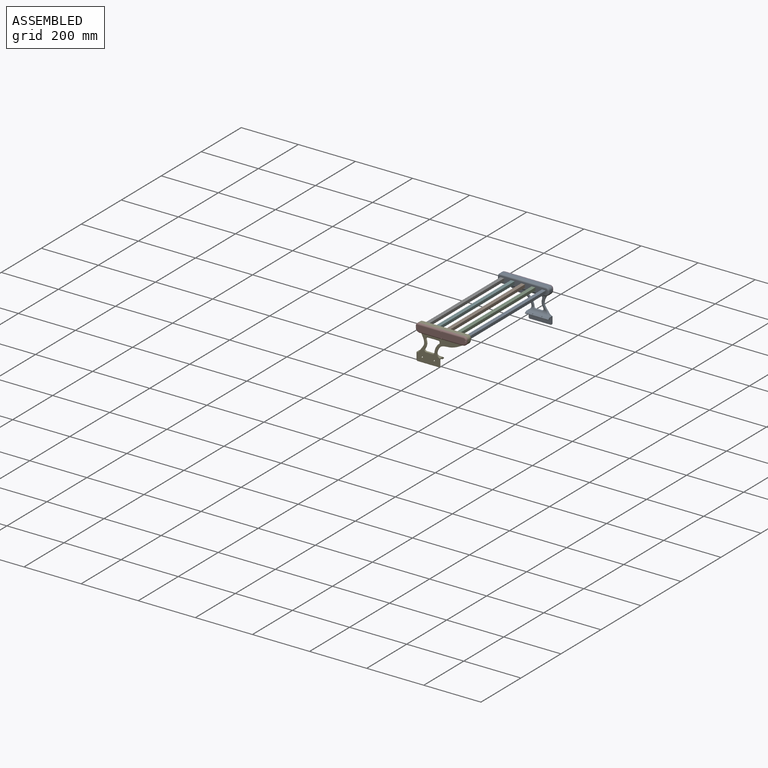
[diagram: assembled view]
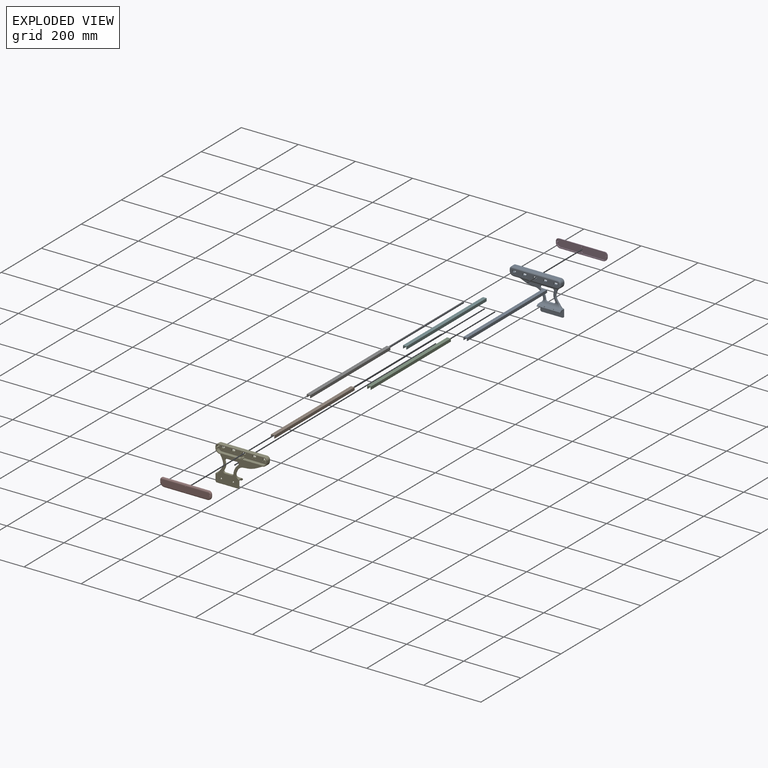
[diagram: exploded view]
GUIDED TOUR — MATED ASSEMBLY (Onshape document 815b8895f1c59bb0c7b80eb2, AutoMate assembly 815b8895f1c59bb0c7b80eb2_e57cbc2ef14b049c7cd40564_e2244f5d2199d30708cefea8_default)

This assembly has 9 components, labeled P0..P8 below (a component is one placed occurrence of a part; the same part can appear more than once), held together by 8 mates. A mate is a constraint between two components; its type names the relative motion it leaves free:
  FASTENED — locks the two components together rigidly (no relative motion).
Axis/direction vectors are unit vectors and 'through' points are millimeter coordinates, both in the assembly's world frame.

MATES
  1. FASTENED "Fastened 3": P1 <-> P0, direction (0.000, 1.000, 0.000) through (-175.53, -9.39, -10.94) mm
  2. FASTENED "Fastened 1": P8 <-> P0, direction (0.000, 1.000, 0.000) through (-102.73, -9.39, -10.94) mm
  3. FASTENED "Fastened 5": P6 <-> P0, direction (0.000, 1.000, 0.000) through (-248.34, -9.39, -10.94) mm
  4. FASTENED "Fastened 8": P7 <-> P4, direction (0.000, 1.000, 0.000) through (-181.24, -421.39, 4.76) mm
  5. FASTENED "Fastened 2": P2 <-> P0, direction (0.000, 1.000, 0.000) through (-139.13, -9.39, -10.94) mm
  6. FASTENED "Fastened 6": P4 <-> P6, direction (0.000, -1.000, 0.000) through (-259.84, -409.39, -10.94) mm
  7. FASTENED "Fastened 7": P3 <-> P0, direction (0.000, -1.000, 0.000) through (-181.32, 2.61, 4.76) mm
  8. FASTENED "Fastened 4": P5 <-> P0, direction (0.000, 1.000, 0.000) through (-211.94, -9.39, -10.94) mm

ASSEMBLY ORDER
  1. P8 — the base component [order verified]
  2. P2 [order verified]
  3. P1 [order verified]
  4. P5 [order verified]
  5. P6 [order verified]
  6. P0 [order verified]
  7. P4 [order verified]
  8. P3 [order verified]
  9. P7 [order verified]
(P0, P4 verified with a relaxed clearance tolerance: the source model stores slight part interference there.)
Order-tag legend:
  [order verified] — this step's position reverses a verified removal order: the component was checked to insert without passing through the ones already placed.

Of the 9 components, 5 carry the full construction recipe — the FeatureScript program that regenerates the part's solid from scratch; the rest are supplied as boundary geometry only.
Each toured component is shown spotlighted twice — in the assembled view, then in the exploded view, where a leader line traces a displaced component back to its assembled socket (saturated green if recipe-attached, orange if geometry-only; every other component desaturated gray) — followed by its recipe or geometry summary and the mates that hold it.
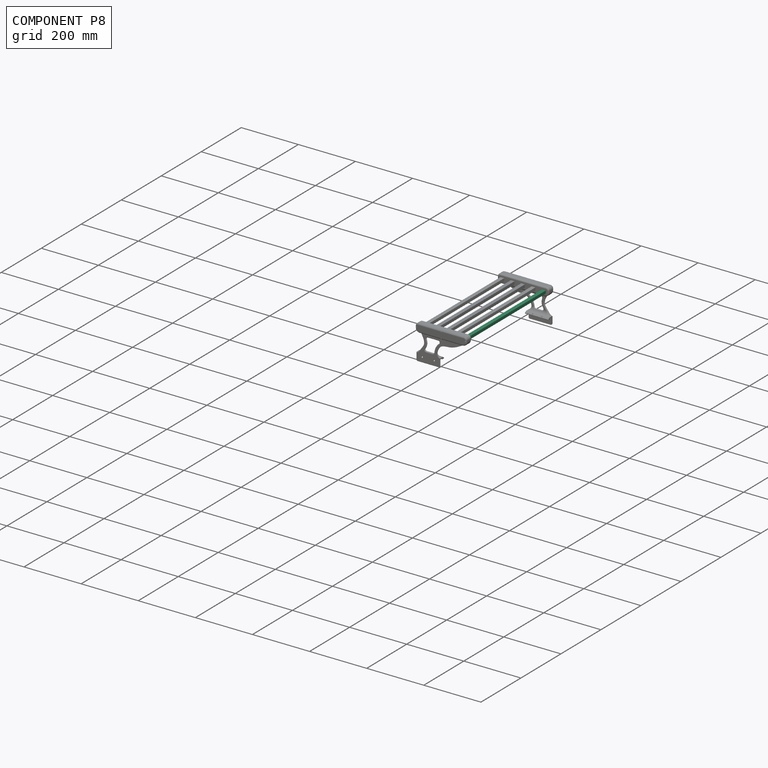
[diagram: component P8 — assembled]
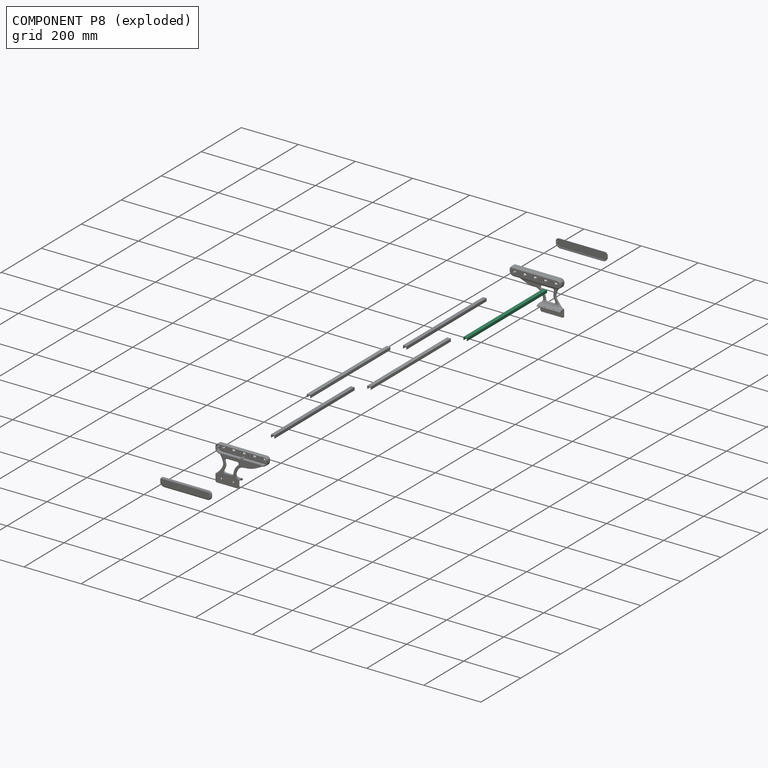
[diagram: component P8 — exploded]
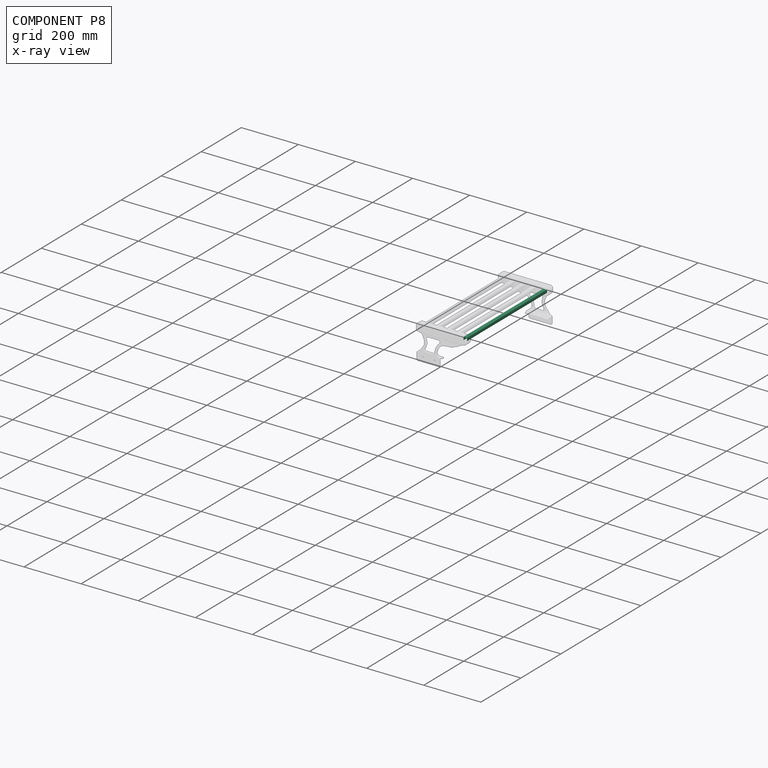
[diagram: component P8 — x-ray view]
COMPONENT P8 — same part as P1 (CADFS 00497129); its construction recipe is shown at P1.
Held by: FASTENED mate "Fastened 1" to P0.
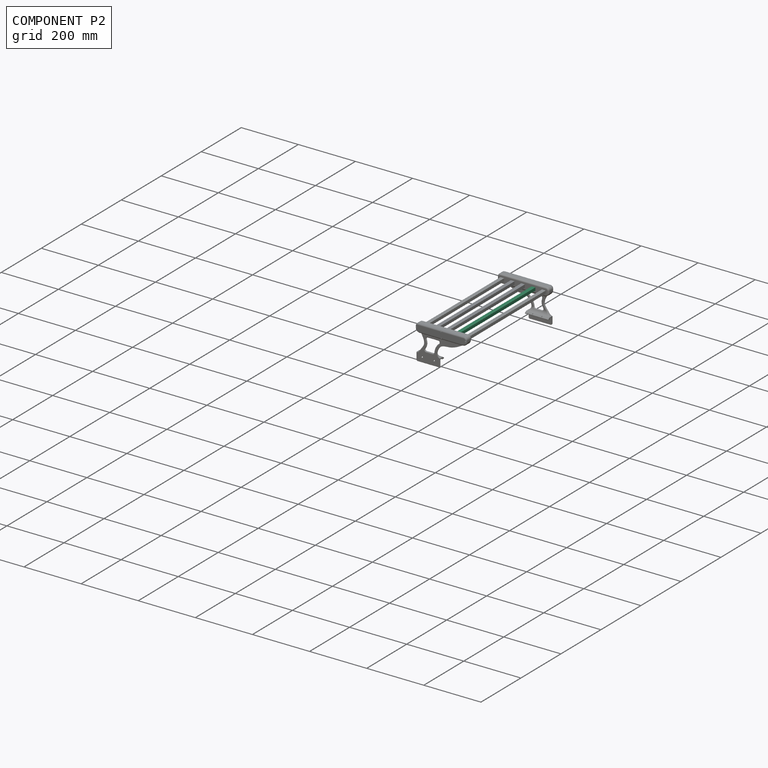
[diagram: component P2 — assembled]
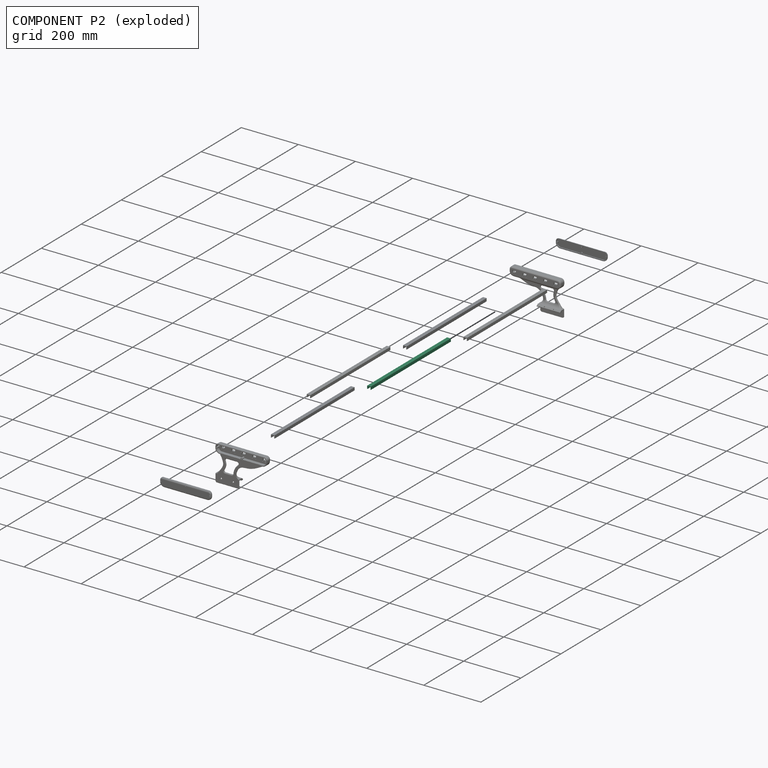
[diagram: component P2 — exploded]
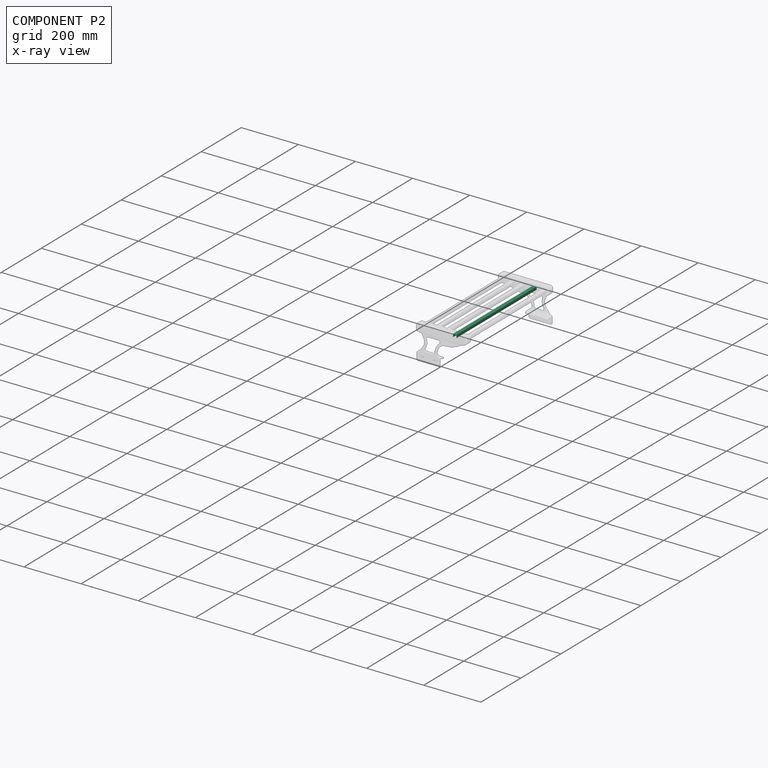
[diagram: component P2 — x-ray view]
COMPONENT P2 — same part as P1 (CADFS 00497129); its construction recipe is shown at P1.
Held by: FASTENED mate "Fastened 2" to P0.
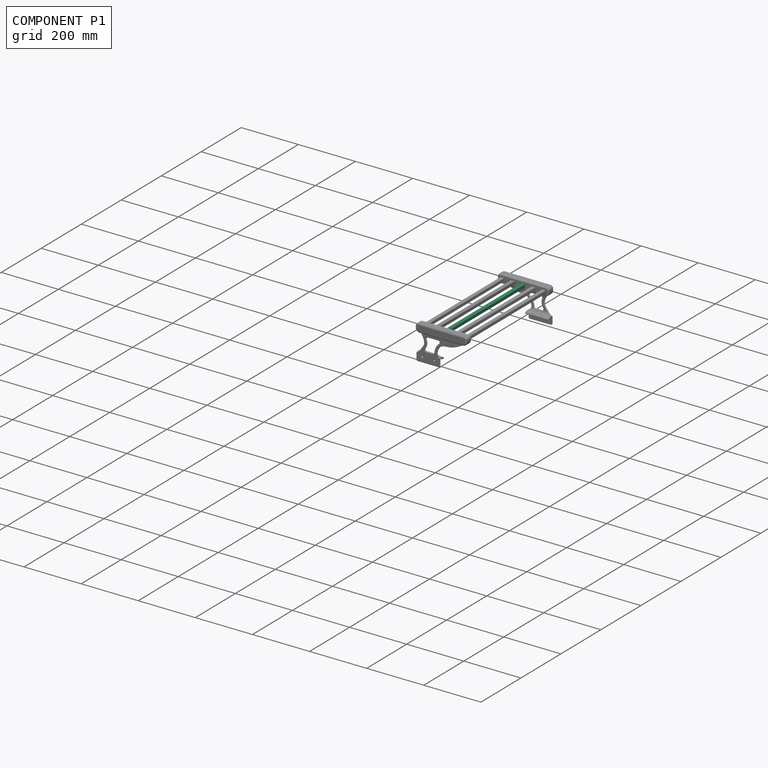
[diagram: component P1 — assembled]
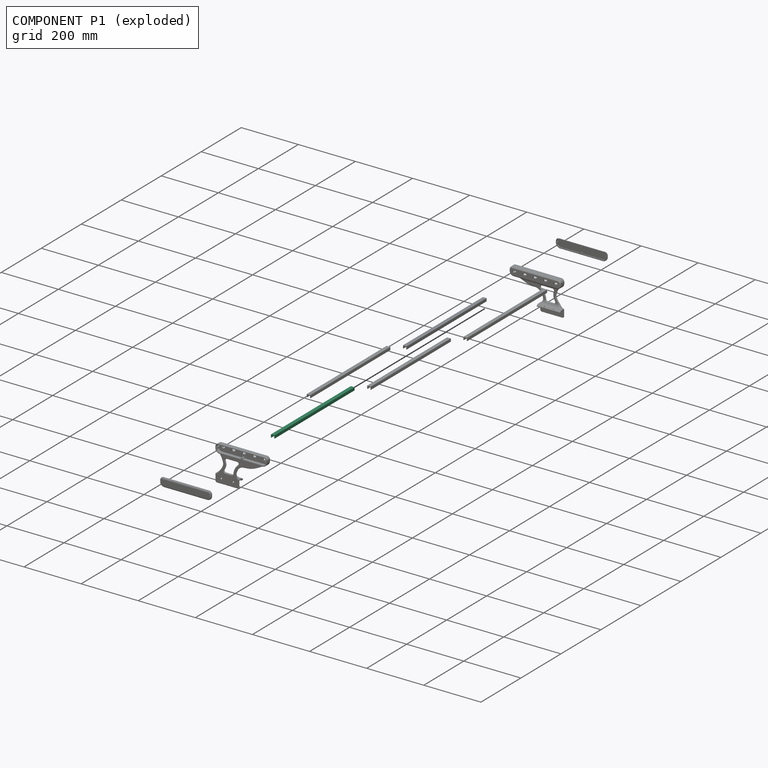
[diagram: component P1 — exploded]
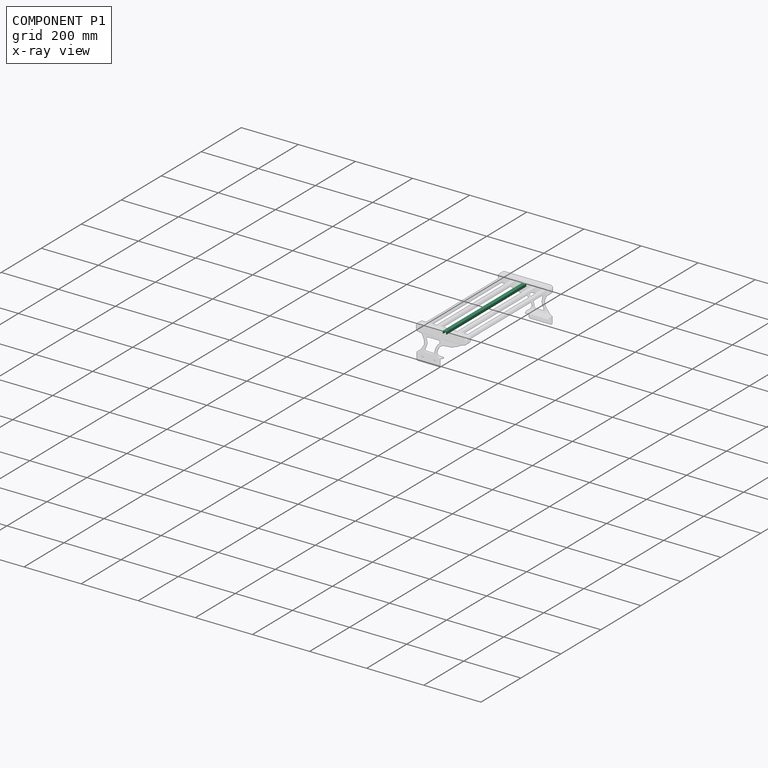
[diagram: component P1 — x-ray view]
COMPONENT P1 — recipe-attached (CADFS 00497129, mesh-verified: the recipe's output STEP matches this component's geometry to below the mesh-comparison resolution (tessellation chordal tolerance ~0.601 mm)).
Held by: FASTENED mate "Fastened 3" to P0.
Construction recipe (FeatureScript — the CAD program that rebuilds this solid; sketch coordinates are in the units given by the * unit suffixes, e.g. mm):

FeatureScript 2599;
import(path : "onshape/std/geometry.fs", version : "2599.0");
import(path : "onshape/std/common.fs", version : "2599.0");
const mm = millimeter;
const VERTEX = EntityType.VERTEX;
const EDGE = EntityType.EDGE;
const FACE = EntityType.FACE;
const BODY = EntityType.BODY;
function v(x, y){return vector(x, y);}
function OD(order){return orderDisambiguation(order);}
function OSD(set){return originalSetDisambiguation(set);}
function TD(topology){return topologyDisambiguation(topology);}
function TDD(query){return trueDependencyDisambiguation(query);}
function sQuery(a, b, c) {return sketchEntityQuery(a, b, c);}

annotation { "Feature Type Name" : "Feature", "Feature Type Description" : "" }
export const myFeature = defineFeature(function(context is Context, id is Id, definition is map)
    precondition{}
    {
        {
            var Q0;
            Q0=qCreatedBy(makeId("Front.planeOp"),FACE);
            var sketch = newSketch(context, id + "F0", { "sketchPlane" : qUnion([Q0])});
            skLineSegment(sketch, "E0.bottom", {"start": v(3.26, 0.03) * mm, "end": v(16.26, 0.03) * mm});
            skLineSegment(sketch, "E0.left", {"start": v(3.26, 0.03) * mm, "end": v(3.26, -9.97) * mm});
            skLineSegment(sketch, "E0.right", {"start": v(16.26, 0.03) * mm, "end": v(16.26, -9.97) * mm});
            skLineSegment(sketch, "E1.0", {"start": v(4.76, -1.47) * mm, "end": v(4.76, -9.97) * mm});
            skLineSegment(sketch, "E1.1", {"start": v(4.76, -1.47) * mm, "end": v(14.76, -1.47) * mm});
            skLineSegment(sketch, "E1.2", {"start": v(14.76, -1.47) * mm, "end": v(14.76, -9.97) * mm});
            skLineSegment(sketch, "E2", {"start": v(3.26, -9.97) * mm, "end": v(4.76, -9.97) * mm});
            skLineSegment(sketch, "E3", {"start": v(14.76, -9.97) * mm, "end": v(16.26, -9.97) * mm});
            skSolve(sketch);
        }
        {
            var Q0;
            Q0=makeQuery(id+"F0.imprint","IMPRINT",FACE,{"disambiguationData":[TD([[makeQuery(id+"F0.imprint","IMPRINT",EDGE,{"derivedFrom":sQuery(id+"F0.wireOp",EDGE,"E0.bottom")}),-1.0]])]});
            extrude(context, id + "F1", {"entities" : qUnion([Q0]), "depth" : 400 * mm});
        }
    });
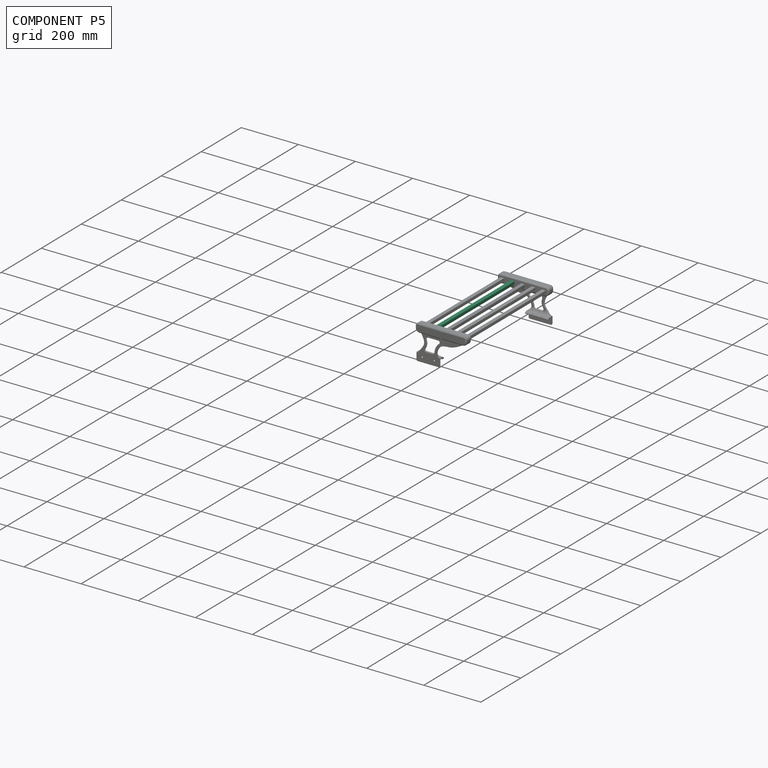
[diagram: component P5 — assembled]
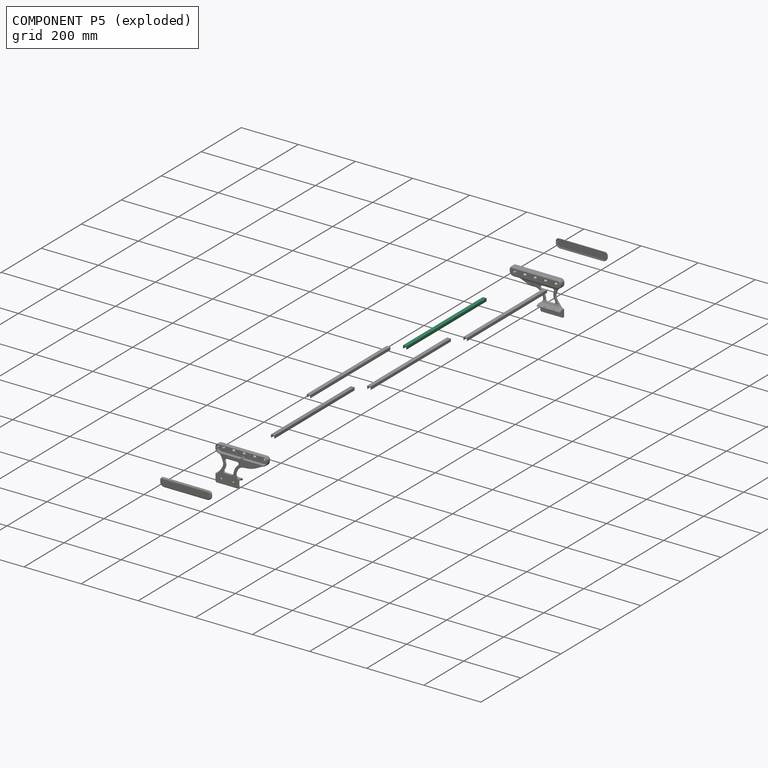
[diagram: component P5 — exploded]
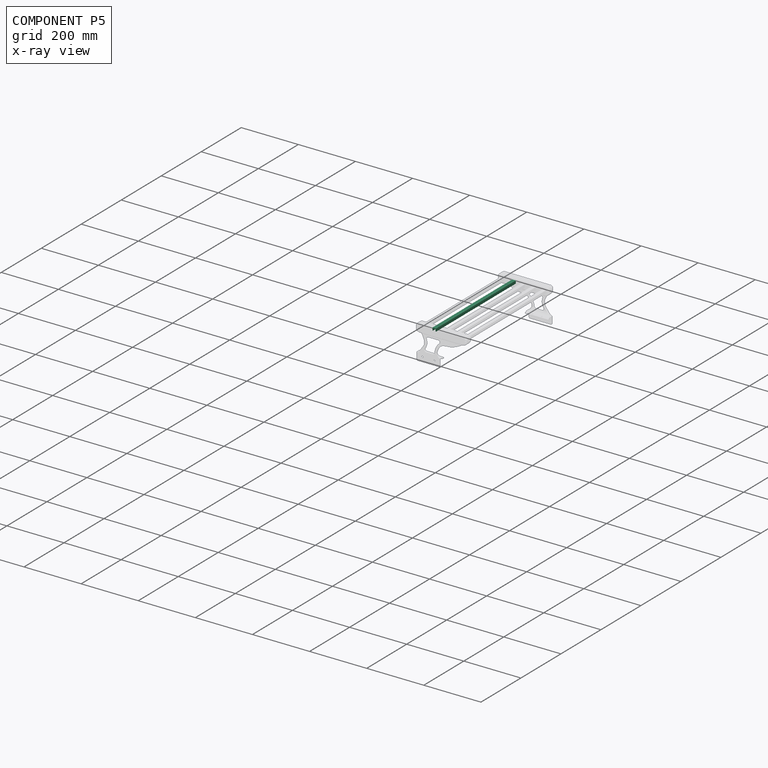
[diagram: component P5 — x-ray view]
COMPONENT P5 — same part as P1 (CADFS 00497129); its construction recipe is shown at P1.
Held by: FASTENED mate "Fastened 4" to P0.
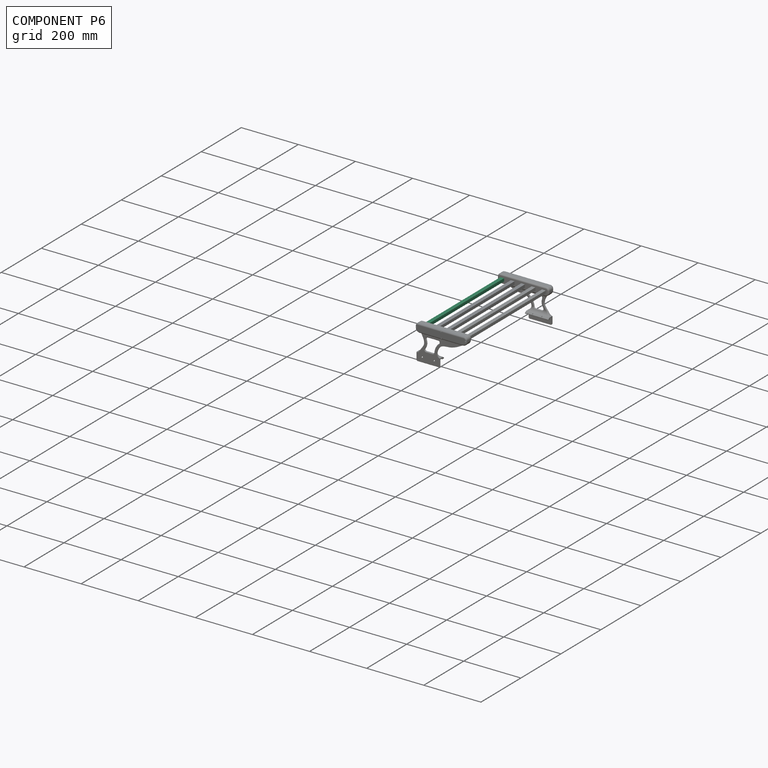
[diagram: component P6 — assembled]
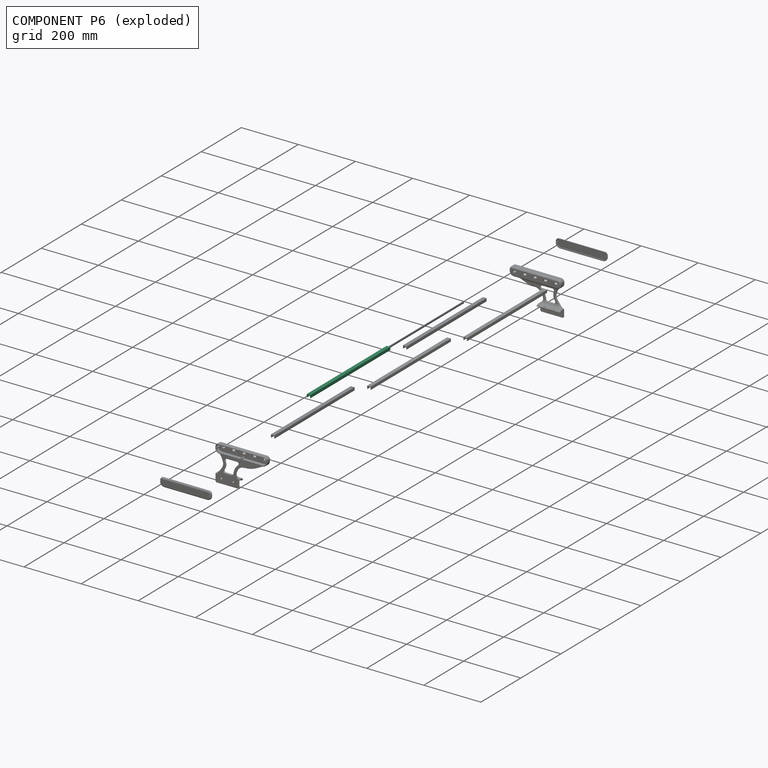
[diagram: component P6 — exploded]
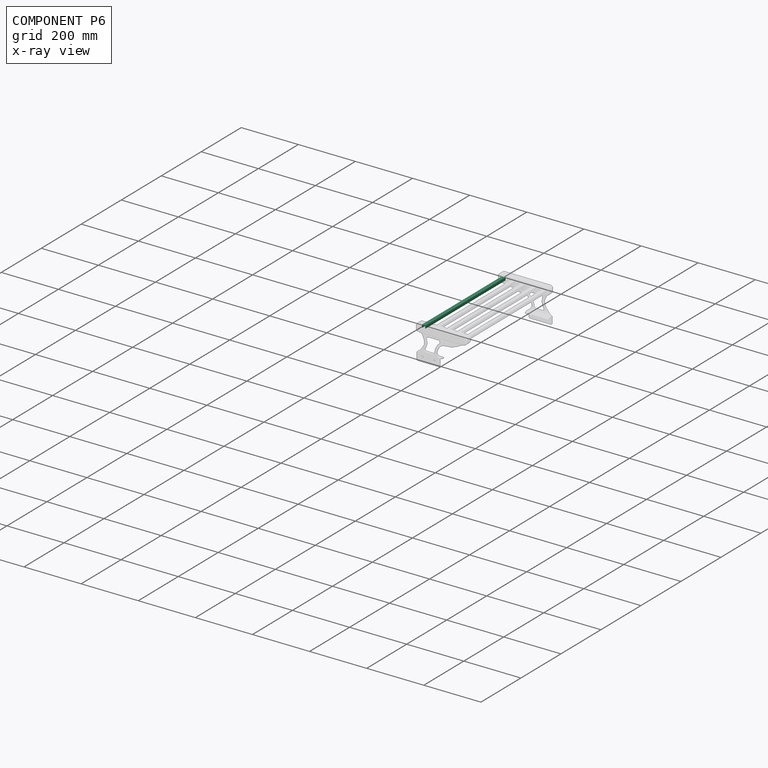
[diagram: component P6 — x-ray view]
COMPONENT P6 — same part as P1 (CADFS 00497129); its construction recipe is shown at P1.
Held by: FASTENED mate "Fastened 5" to P0; FASTENED mate "Fastened 6" to P4.
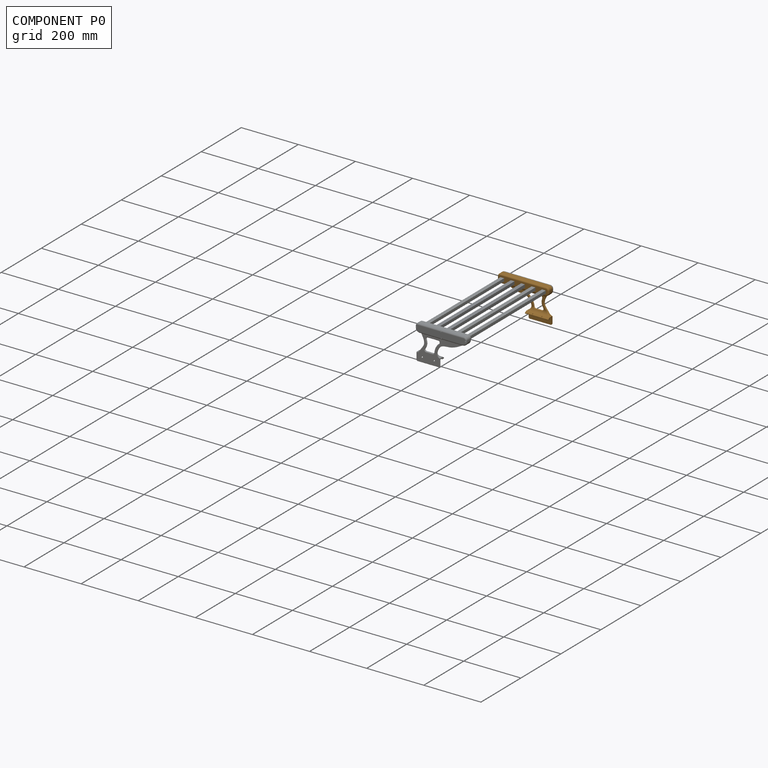
[diagram: component P0 — assembled]
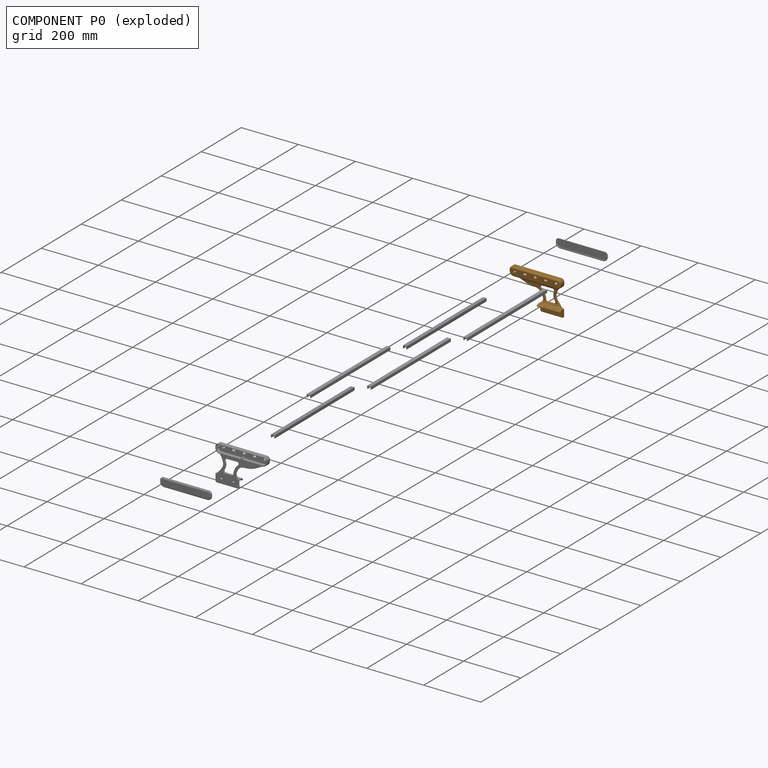
[diagram: component P0 — exploded]
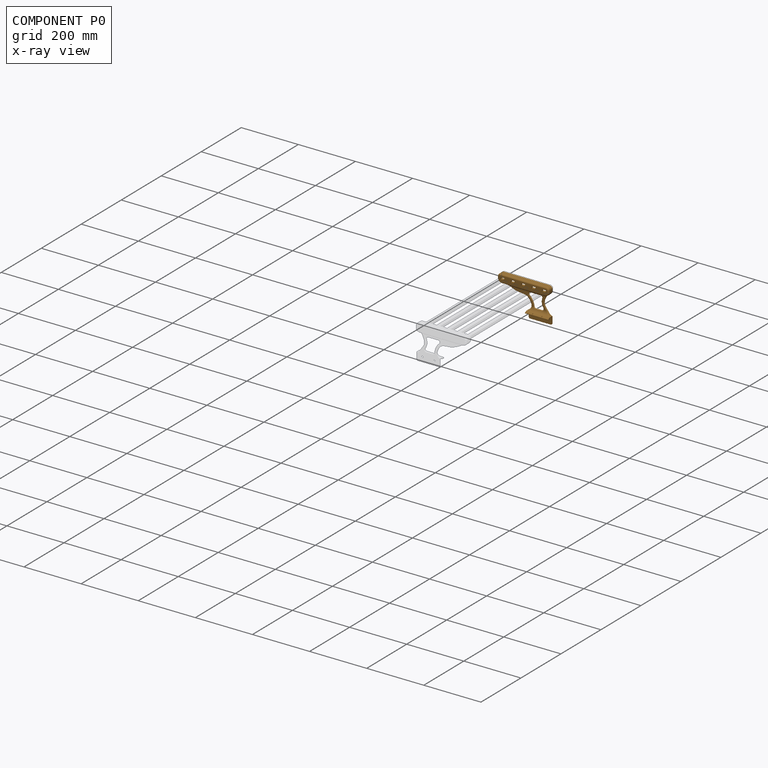
[diagram: component P0 — x-ray view]
COMPONENT P0 — geometry summary (no construction recipe available for this part):
  bounding box: 183.7 x 125.6 x 80.3 mm
  B-rep topology: 1 solid, 149 faces, 790 edges
  volume: 83744 mm^3 (5% of its bounding box)
Held by: FASTENED mate "Fastened 3" to P1; FASTENED mate "Fastened 1" to P8; FASTENED mate "Fastened 5" to P6; FASTENED mate "Fastened 2" to P2; FASTENED mate "Fastened 7" to P3; FASTENED mate "Fastened 4" to P5.
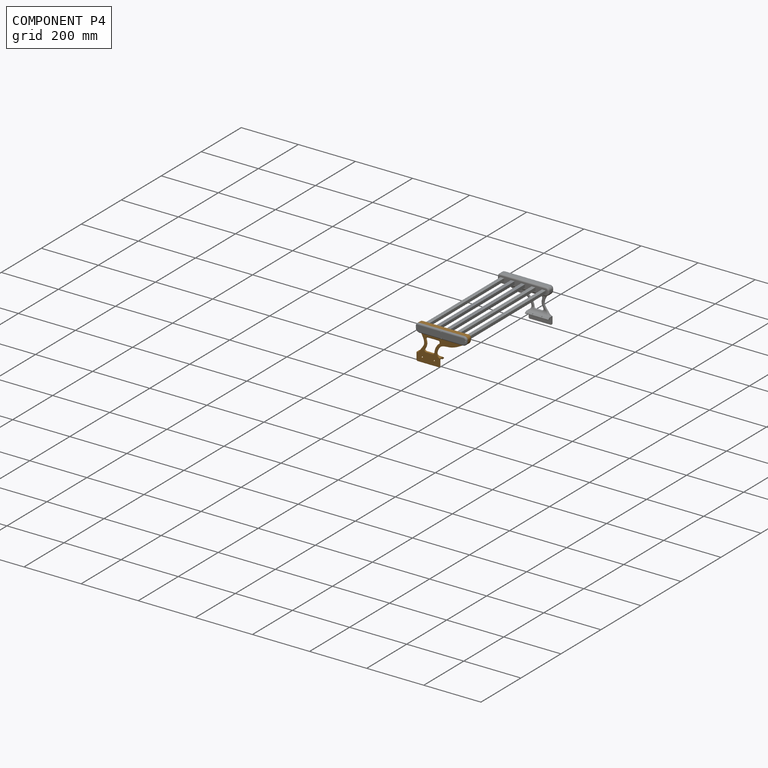
[diagram: component P4 — assembled]
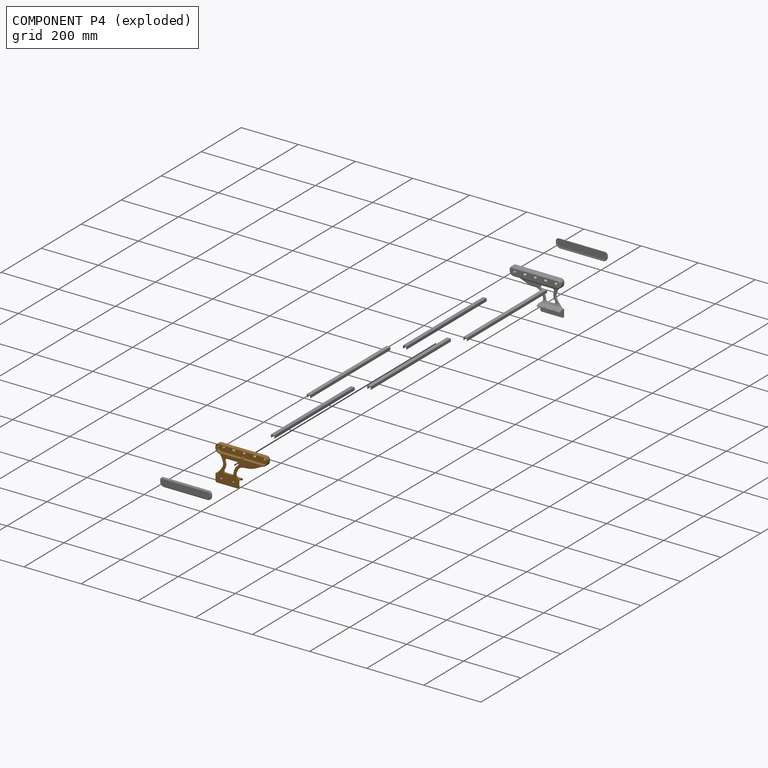
[diagram: component P4 — exploded]
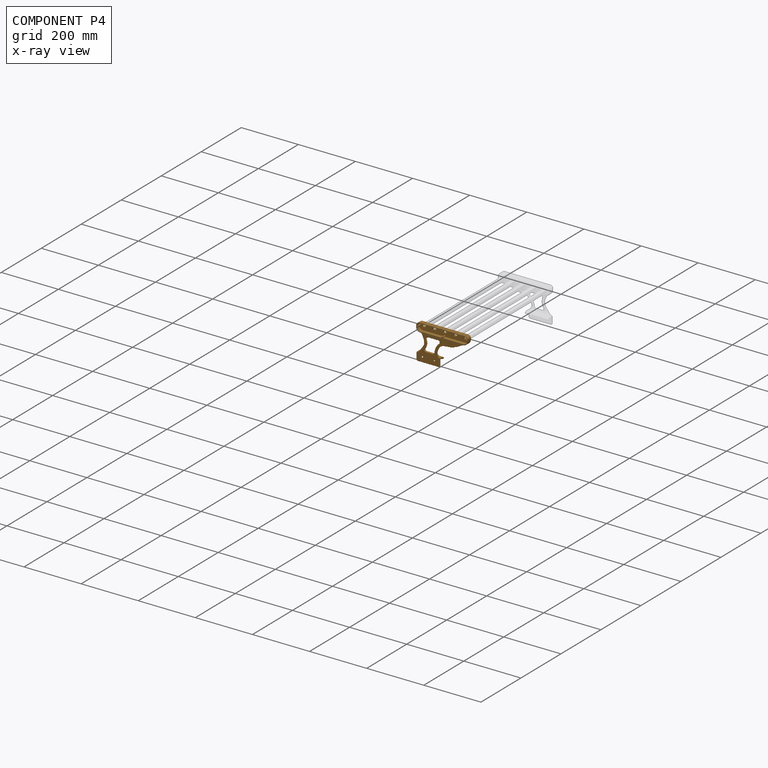
[diagram: component P4 — x-ray view]
COMPONENT P4 — geometry summary (no construction recipe available for this part):
  bounding box: 183.7 x 125.6 x 80.3 mm
  B-rep topology: 1 solid, 149 faces, 790 edges
  volume: 83744 mm^3 (5% of its bounding box)
Held by: FASTENED mate "Fastened 8" to P7; FASTENED mate "Fastened 6" to P6.
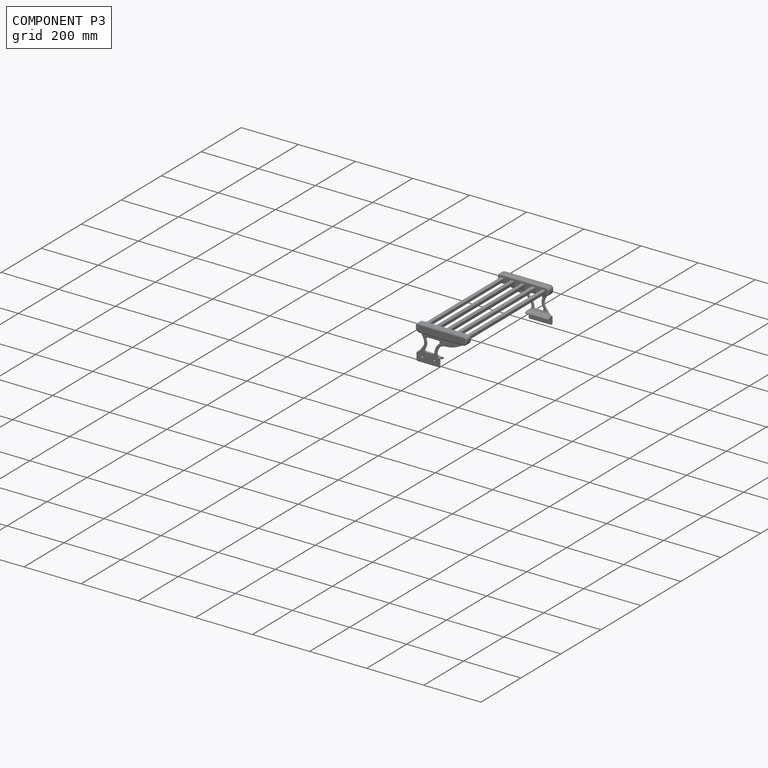
[diagram: component P3 — assembled]
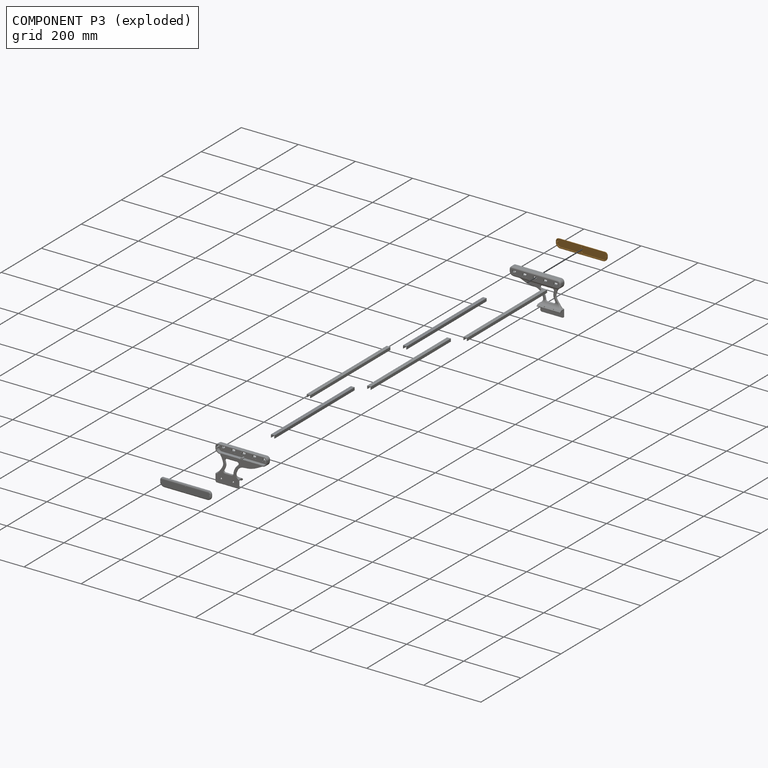
[diagram: component P3 — exploded]
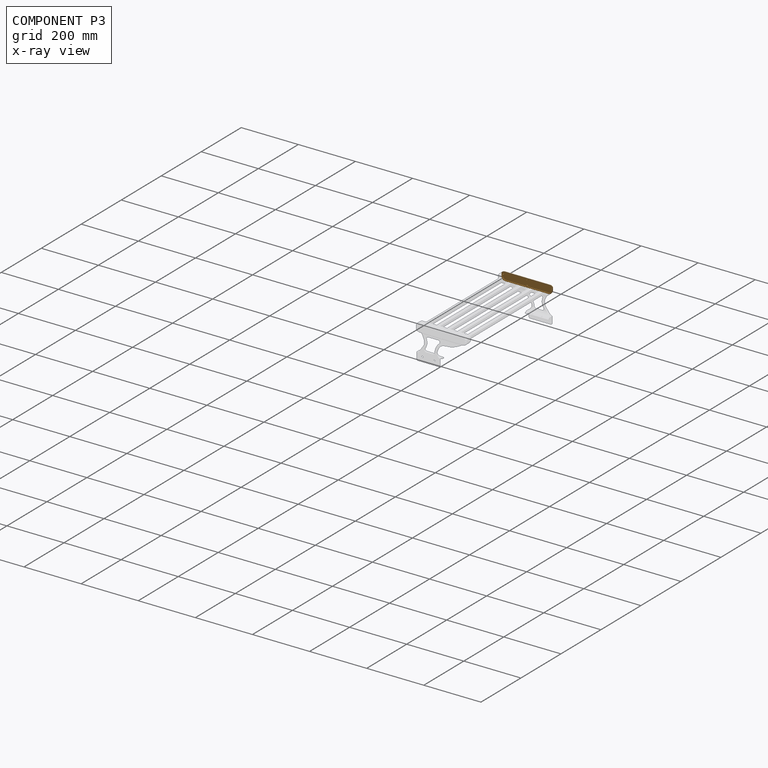
[diagram: component P3 — x-ray view]
COMPONENT P3 — geometry summary (no construction recipe available for this part):
  bounding box: 182.5 x 32.1 x 6.2 mm
  B-rep topology: 1 solid, 50 faces, 272 edges
  volume: 18334 mm^3 (51% of its bounding box)
Held by: FASTENED mate "Fastened 7" to P0.
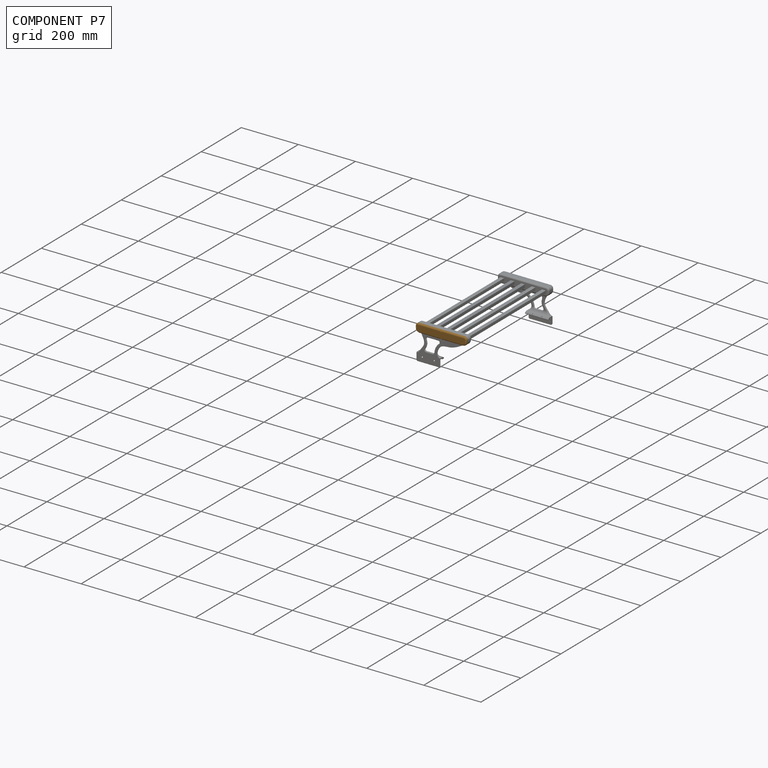
[diagram: component P7 — assembled]
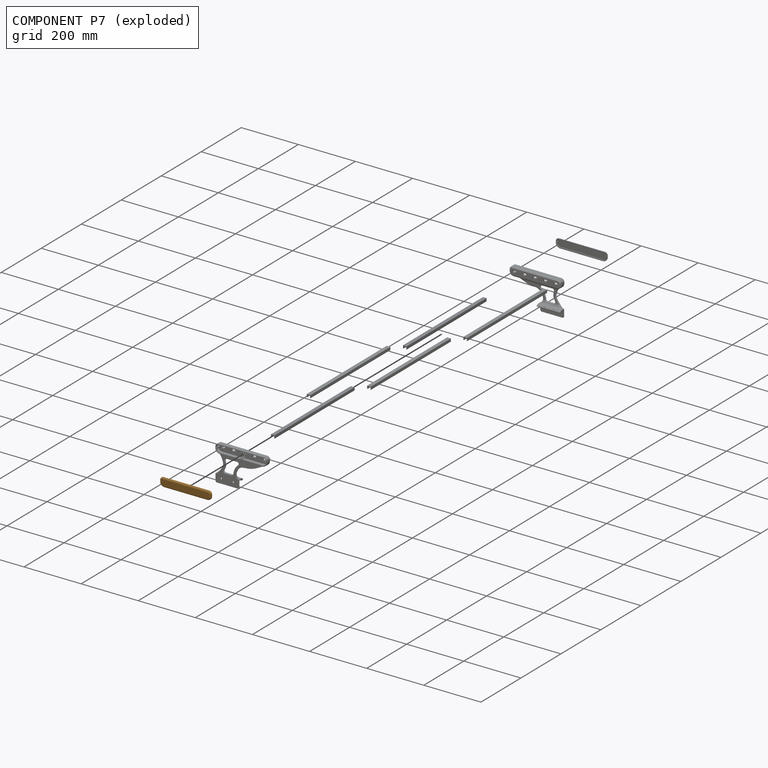
[diagram: component P7 — exploded]
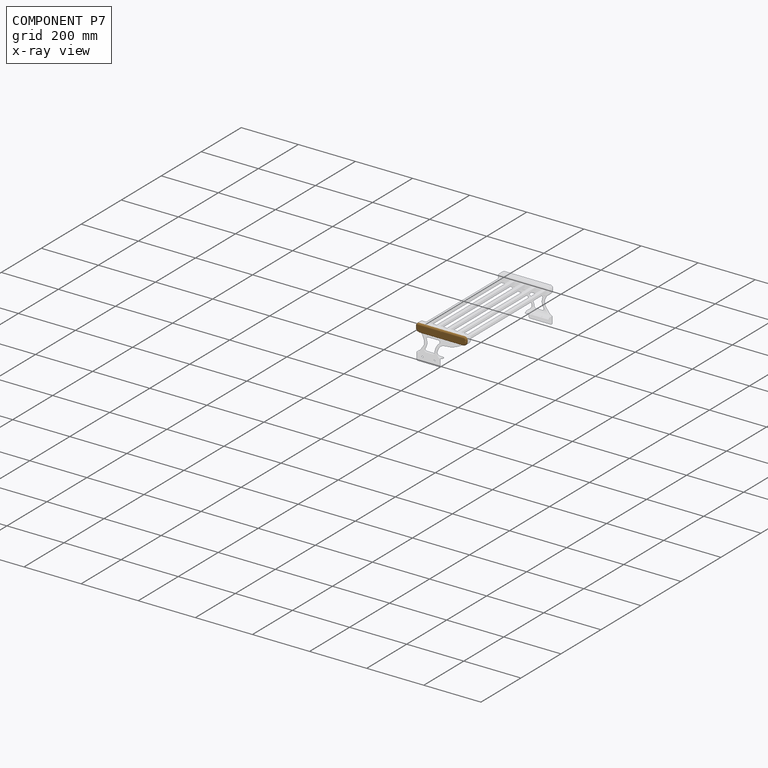
[diagram: component P7 — x-ray view]
COMPONENT P7 — geometry summary (no construction recipe available for this part):
  bounding box: 182.5 x 32.1 x 6.2 mm
  B-rep topology: 1 solid, 50 faces, 272 edges
  volume: 18334 mm^3 (51% of its bounding box)
Held by: FASTENED mate "Fastened 8" to P4.
PROVENANCE & LICENSES
Assembly (occurrences, transforms, mates, per-part STEP geometry): AutoMate dataset, Zenodo record 7776208, CC0.
Construction recipes: CADFS (HuggingFace VladPyatov/CADFS, CC-BY-4.0, layered over the ABC dataset), FeatureScript reconstruction programs keyed by ABC model id.
Join: ABC meta listings map ABC model id -> Onshape documentId; within a shared document, parts are matched by geometric signature (bounding-box dims + volume at 0.1% relative tolerance, exact B-rep face/solid counts).
Verification: 5 of this assembly's 9 components carry a recipe attachment, and every attachment is mesh-verified: the CADFS STEP and the AutoMate member STEP were compared as meshes in their shared local frame (symmetric sampled-point-to-mesh distance); worst across the 5 attachments: below the mesh-comparison resolution (tessellation chordal tolerance ~0.601 mm) on a 400 mm part.
Renders: orthographic iso camera (az 35 / el 25); the floor grid conveys scale (grid pitch printed in each image; no ruler). In the exploded view each component is displaced by its stored offset vector: the offsets alone carry the explosion direction (mate normal/axis signs are not orientation cues and do not encode it), and separation distances are assigned per mate-chain, not proportionally to assembly-order depth.
